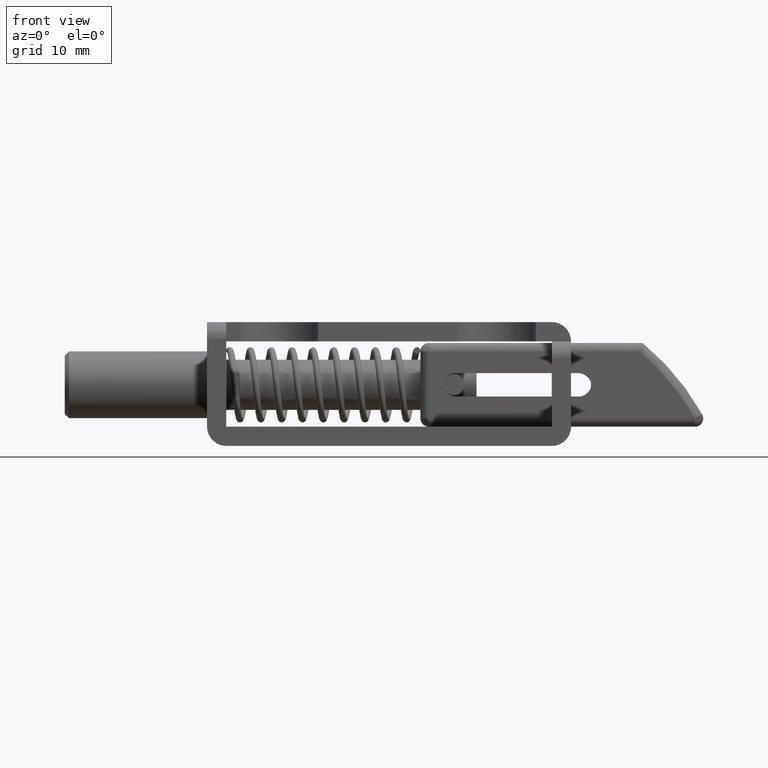
[diagram: clean part render]
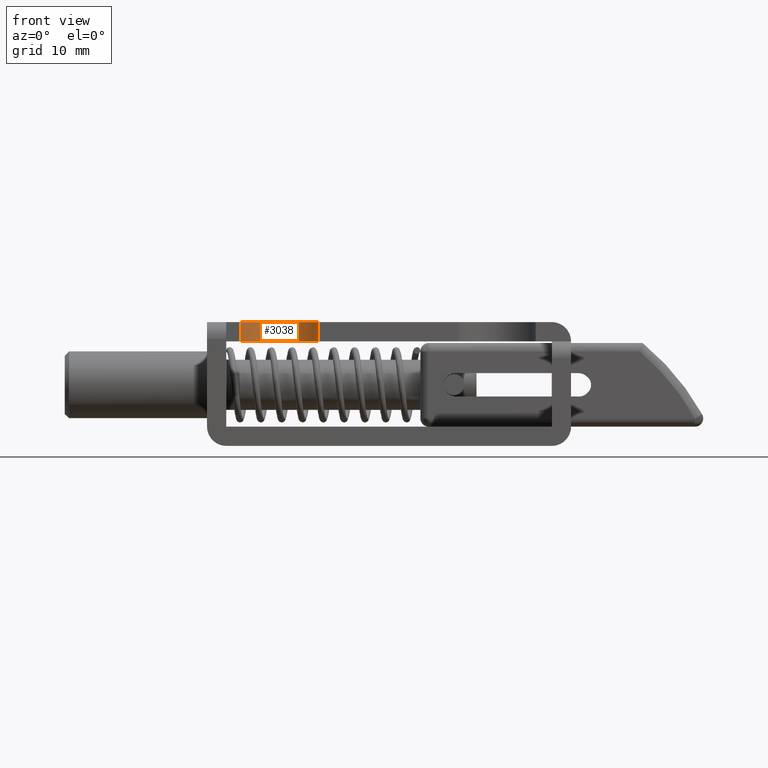
[diagram: same view with one face highlighted and labeled with its STEP entity id]
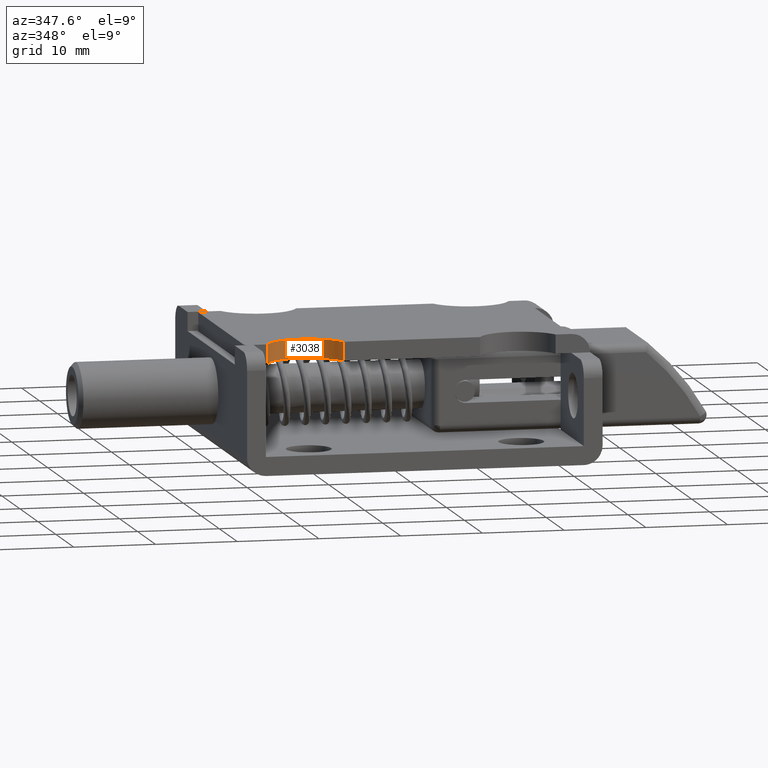
[diagram: same view with one face highlighted and labeled with its STEP entity id]
A machine part, front view. The second image highlights one B-rep face of the part: STEP entity #3038.
A second angle (auxiliary view) of the same face is appended — the face is thin or edge-on in the first view.
In plain terms, the highlighted face is a freeform B-spline surface patch.
Its self-contained STEP definition (entity closure, byte-faithful):
#1336=CARTESIAN_POINT('',(4.029188382978700,-5.200000000000090,-13.090000000000000));
#1337=VERTEX_POINT('',#1336);
#1343=CARTESIAN_POINT('',(4.029188382978700,-7.500000000000000,-13.090000000000000));
#1344=VERTEX_POINT('',#1343);
#1345=CARTESIAN_POINT('',(4.029188382978700,-5.200000000000090,-13.090000000000000));
#1346=CARTESIAN_POINT('',(4.029188382978700,-7.500000000000000,-13.090000000000000));
#1347=QUASI_UNIFORM_CURVE('',1,(#1345,#1346),.UNSPECIFIED.,.F.,.U.);
#1348=EDGE_CURVE('',#1337,#1344,#1347,.T.);
#2071=CARTESIAN_POINT('',(13.274932000000099,-5.200000000000090,-13.100000000000000));
#2072=VERTEX_POINT('',#2071);
#2079=CARTESIAN_POINT('',(13.274932000000099,-7.500000000000000,-13.100000000000000));
#2080=VERTEX_POINT('',#2079);
#2086=CARTESIAN_POINT('',(13.274932000000099,-7.500000000000000,-13.100000000000000));
#2087=CARTESIAN_POINT('',(13.274932000000099,-5.200000000000090,-13.100000000000000));
#2088=QUASI_UNIFORM_CURVE('',1,(#2086,#2087),.UNSPECIFIED.,.F.,.U.);
#2089=EDGE_CURVE('',#2080,#2072,#2088,.T.);
#2986=CARTESIAN_POINT('',(13.347196979444851,-7.557499999999998,-13.286424633610990));
#2987=CARTESIAN_POINT('',(13.347196979444851,-5.141062500000091,-13.286424633610990));
#2988=CARTESIAN_POINT('',(12.124915549280495,-7.557499999999999,-9.935946589626308));
#2989=CARTESIAN_POINT('',(12.124915549280495,-5.141062500000091,-9.935946589626308));
#2990=CARTESIAN_POINT('',(8.559040412109450,-7.557499999999998,-10.000827433127480));
#2991=CARTESIAN_POINT('',(8.559040412109450,-5.141062500000091,-10.000827433127480));
#2992=CARTESIAN_POINT('',(4.993165274938407,-7.557499999999999,-10.065708276628659));
#2993=CARTESIAN_POINT('',(4.993165274938407,-5.141062500000091,-10.065708276628659));
#2994=CARTESIAN_POINT('',(3.893575930235883,-7.557499999999998,-13.458432593569951));
#2995=CARTESIAN_POINT('',(3.893575930235883,-5.141062500000091,-13.458432593569951));
#3003=(BOUNDED_SURFACE()B_SPLINE_SURFACE(1,2,((#2986,#2988,#2990,#2992,#2994),(#2987,#2989,#2991,#2993,#2995)),.UNSPECIFIED.,.F.,.F.,.U.)B_SPLINE_SURFACE_WITH_KNOTS((2,2),(3,2,3),(0.0,2.416437499999907),(0.0,6.402050474019273,12.804100948038551),.UNSPECIFIED.)GEOMETRIC_REPRESENTATION_ITEM()RATIONAL_B_SPLINE_SURFACE(((1.0,0.814115518356319,1.0,0.814115518356319,1.0),(1.0,0.814115518356319,1.0,0.814115518356319,1.0)))REPRESENTATION_ITEM('')SURFACE());
#3004=CARTESIAN_POINT('',(4.029188382978701,-7.500000000000000,-13.090000000000000));
#3005=CARTESIAN_POINT('',(5.307926855058924,-7.500000000000000,-9.996382415224867));
#3006=CARTESIAN_POINT('',(8.655407808361126,-7.500000000000000,-10.000002924439981));
#3007=CARTESIAN_POINT('',(12.002888761663330,-7.500000000000000,-10.003623433655097));
#3008=CARTESIAN_POINT('',(13.274932000000099,-7.500000000000000,-13.100000000000000));
#3016=(BOUNDED_CURVE()B_SPLINE_CURVE(2,(#3004,#3005,#3006,#3007,#3008),.UNSPECIFIED.,.F.,.U.)B_SPLINE_CURVE_WITH_KNOTS((3,2,3),(0.0,0.500000000000000,1.0),.UNSPECIFIED.)CURVE()GEOMETRIC_REPRESENTATION_ITEM()RATIONAL_B_SPLINE_CURVE((1.0,0.830963368032820,1.0,0.830963368032820,1.0))REPRESENTATION_ITEM(''));
#3017=EDGE_CURVE('',#1344,#2080,#3016,.T.);
#3018=ORIENTED_EDGE('',*,*,#3017,.F.);
#3019=ORIENTED_EDGE('',*,*,#1348,.F.);
#3020=CARTESIAN_POINT('',(4.029188382978701,-5.200000000000090,-13.090000000000000));
#3021=CARTESIAN_POINT('',(5.307926855058924,-5.200000000000090,-9.996382415224867));
#3022=CARTESIAN_POINT('',(8.655407808361126,-5.200000000000090,-10.000002924439981));
#3023=CARTESIAN_POINT('',(12.002888761663330,-5.200000000000090,-10.003623433655097));
#3024=CARTESIAN_POINT('',(13.274932000000099,-5.200000000000090,-13.100000000000000));
#3032=(BOUNDED_CURVE()B_SPLINE_CURVE(2,(#3020,#3021,#3022,#3023,#3024),.UNSPECIFIED.,.F.,.U.)B_SPLINE_CURVE_WITH_KNOTS((3,2,3),(0.0,0.500000000000000,1.0),.UNSPECIFIED.)CURVE()GEOMETRIC_REPRESENTATION_ITEM()RATIONAL_B_SPLINE_CURVE((1.0,0.830963368032820,1.0,0.830963368032820,1.0))REPRESENTATION_ITEM(''));
#3033=EDGE_CURVE('',#1337,#2072,#3032,.T.);
#3034=ORIENTED_EDGE('',*,*,#3033,.T.);
#3035=ORIENTED_EDGE('',*,*,#2089,.F.);
#3036=EDGE_LOOP('',(#3018,#3019,#3034,#3035));
#3037=FACE_OUTER_BOUND('',#3036,.T.);
#3038=ADVANCED_FACE('',(#3037),#3003,.F.);